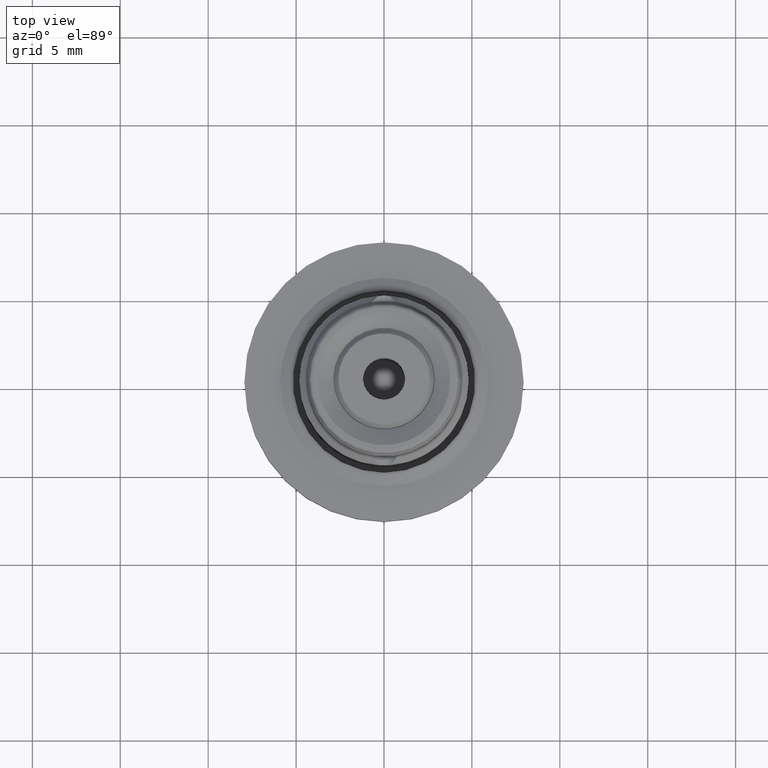
[diagram: clean part render]
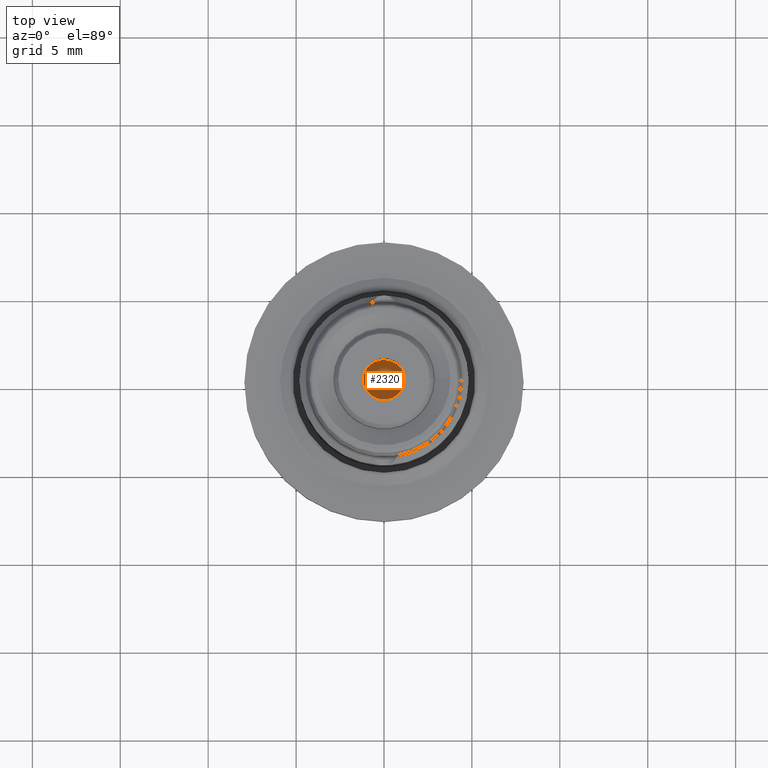
[diagram: same view with one face highlighted and labeled with its STEP entity id]
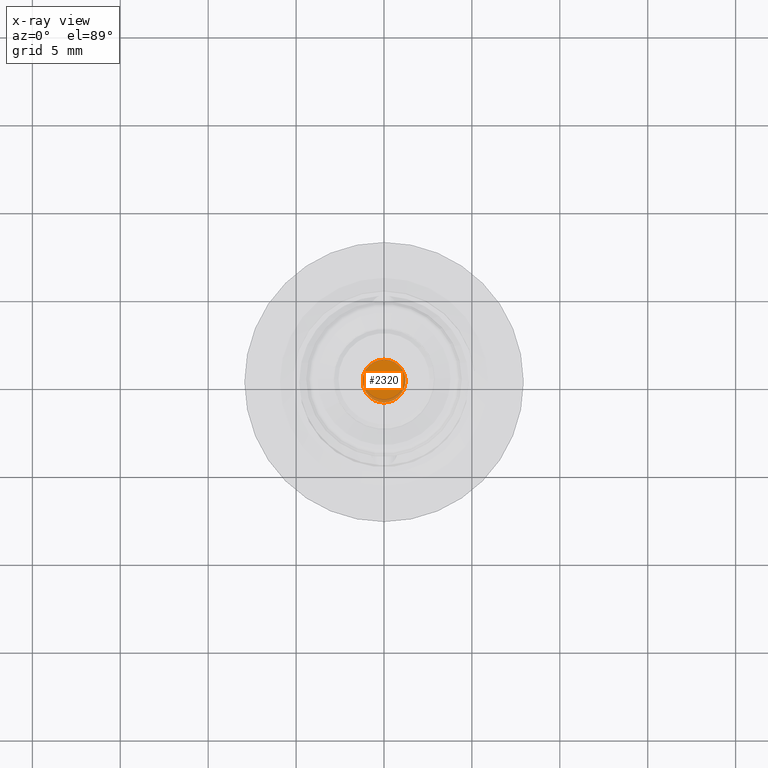
[diagram: x-ray of the same camera — body ghosted, the highlighted face saturated]
A machine part, top view. The second image highlights one B-rep face of the part: STEP entity #2320.
The next image is the same camera in x-ray: the body ghosted, the highlighted face saturated — about 9% of this face is hidden behind the body in this view.
In plain terms, the highlighted planar face has unit normal (0, 0, -1).
Its self-contained STEP definition (entity closure, byte-faithful):
#382=CARTESIAN_POINT('',(0.E0,0.E0,4.1402E0));
#383=DIRECTION('',(0.E0,0.E0,1.E0));
#384=DIRECTION('',(0.E0,1.E0,0.E0));
#385=AXIS2_PLACEMENT_3D('',#382,#383,#384);
#447=CARTESIAN_POINT('',(0.E0,0.E0,4.1402E0));
#448=DIRECTION('',(0.E0,0.E0,1.E0));
#449=DIRECTION('',(0.E0,-1.E0,0.E0));
#450=AXIS2_PLACEMENT_3D('',#447,#448,#449);
#1776=CARTESIAN_POINT('',(0.E0,1.2192E0,4.1402E0));
#1777=CARTESIAN_POINT('',(0.E0,-1.2192E0,4.1402E0));
#1778=VERTEX_POINT('',#1776);
#1779=VERTEX_POINT('',#1777);
#2310=CARTESIAN_POINT('',(0.E0,0.E0,4.1402E0));
#2311=DIRECTION('',(0.E0,0.E0,-1.E0));
#2312=DIRECTION('',(0.E0,1.E0,0.E0));
#2313=AXIS2_PLACEMENT_3D('',#2310,#2311,#2312);
#2314=PLANE('',#2313);
#2315=ORIENTED_EDGE('',*,*,#2283,.F.);
#2317=ORIENTED_EDGE('',*,*,#2316,.F.);
#2318=EDGE_LOOP('',(#2315,#2317));
#2319=FACE_OUTER_BOUND('',#2318,.F.);
#2320=ADVANCED_FACE('',(#2319),#2314,.F.);
#386=CIRCLE('',#385,1.2192E0);
#451=CIRCLE('',#450,1.2192E0);
#2283=EDGE_CURVE('',#1778,#1779,#386,.T.);
#2316=EDGE_CURVE('',#1779,#1778,#451,.T.);